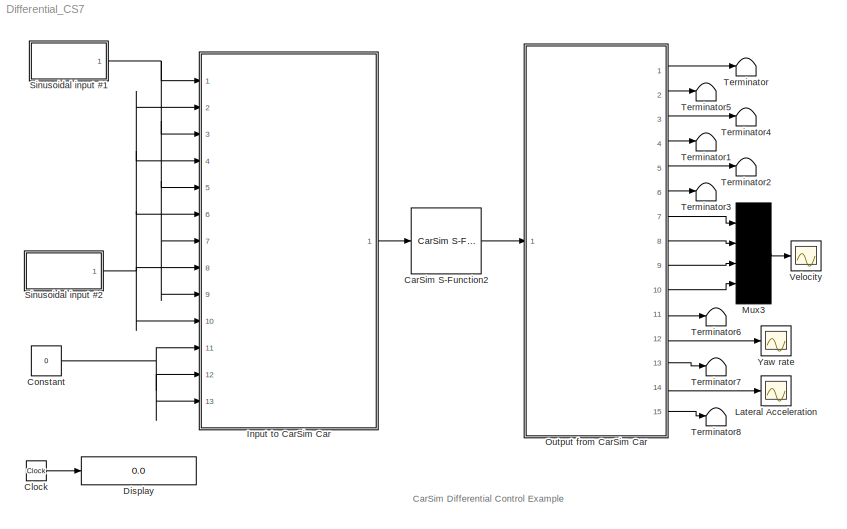
MODEL Differential_CS7
KIND model
BLOCK [Reference] CarSim S-Function2  REF=Solver_SF/CarSim S-Function2
  AttributesFormatString = Vehicle Code: %<VehicleCode>
  Ports = [1, 1]
  Priority = 1
  SIMFILE = simfile.sim
  SourceBlock = Solver_SF/CarSim S-Function2
  SourceType = Vehicle math model library
  VehicleCode = i_s
BLOCK [Clock] Clock
  Decimation = 10
BLOCK [Constant] Constant
  OutDataType = sfix(16)
  OutScaling = 2^0
  Value = 0
BLOCK [Display] Display
  Decimation = 100
  Format = bank
  Lockdown = off
  Ports = [1]
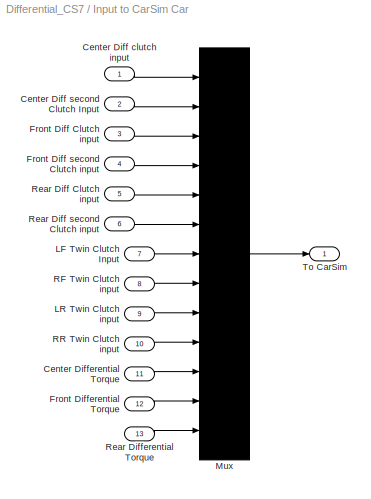
BLOCK [SubSystem] Input to CarSim Car
  FunctionWithSeparateData = off
  MaskHideContents = off
  MinAlgLoopOccurrences = off
  Ports = [13, 1]
  PropExecContextOutsideSubsystem = off
  RTWSystemCode = Auto
BLOCK [Inport] Input to CarSim Car/Center Diff clutch input
  IconDisplay = Port number
  OutDataType = sfix(16)
  OutScaling = 2^0
BLOCK [Inport] Input to CarSim Car/Center Diff second Clutch Input
  IconDisplay = Port number
  OutDataType = sfix(16)
  OutScaling = 2^0
  Port = 2
BLOCK [Inport] Input to CarSim Car/Center Differential Torque
  IconDisplay = Port number
  OutDataType = sfix(16)
  OutScaling = 2^0
  Port = 11
BLOCK [Inport] Input to CarSim Car/Front Diff Clutch input
  IconDisplay = Port number
  OutDataType = sfix(16)
  OutScaling = 2^0
  Port = 3
BLOCK [Inport] Input to CarSim Car/Front Diff second Clutch input
  IconDisplay = Port number
  OutDataType = sfix(16)
  OutScaling = 2^0
  Port = 4
BLOCK [Inport] Input to CarSim Car/Front Differential Torque 
  IconDisplay = Port number
  OutDataType = sfix(16)
  OutScaling = 2^0
  Port = 12
BLOCK [Inport] Input to CarSim Car/LF Twin Clutch Input
  IconDisplay = Port number
  OutDataType = sfix(16)
  OutScaling = 2^0
  Port = 7
BLOCK [Inport] Input to CarSim Car/LR Twin Clutch input
  IconDisplay = Port number
  OutDataType = sfix(16)
  OutScaling = 2^0
  Port = 9
BLOCK [Mux] Input to CarSim Car/Mux
  Inputs = 13
  Ports = [13, 1]
BLOCK [Inport] Input to CarSim Car/RF Twin Clutch input
  IconDisplay = Port number
  OutDataType = sfix(16)
  OutScaling = 2^0
  Port = 8
BLOCK [Inport] Input to CarSim Car/RR Twin Clutch input
  IconDisplay = Port number
  OutDataType = sfix(16)
  OutScaling = 2^0
  Port = 10
BLOCK [Inport] Input to CarSim Car/Rear Diff Clutch input
  IconDisplay = Port number
  OutDataType = sfix(16)
  OutScaling = 2^0
  Port = 5
BLOCK [Inport] Input to CarSim Car/Rear Diff second Clutch input
  IconDisplay = Port number
  OutDataType = sfix(16)
  OutScaling = 2^0
  Port = 6
BLOCK [Inport] Input to CarSim Car/Rear Differential Torque
  IconDisplay = Port number
  OutDataType = sfix(16)
  OutScaling = 2^0
  Port = 13
BLOCK [Outport] Input to CarSim Car/To CarSim
  IconDisplay = Port number
BLOCK [Scope] Lateral Acceleration
  DataFormat = Array
  Floating = off
  LimitDataPoints = off
  NumInputPorts = 1
  Ports = [1]
  SampleTime = 100
  TickLabels = on
  YMax = 1
  YMin = -1
  ZoomMode = yonly
BLOCK [Mux] Mux3
  Ports = [4, 1]
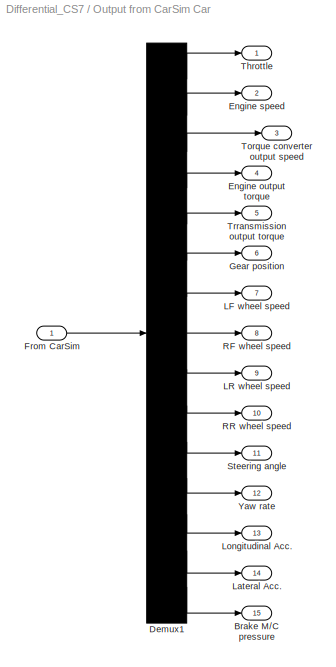
BLOCK [SubSystem] Output from CarSim Car
  FunctionWithSeparateData = off
  MaskHideContents = off
  MinAlgLoopOccurrences = off
  Ports = [1, 15]
  PropExecContextOutsideSubsystem = off
  RTWSystemCode = Auto
BLOCK [Outport] Output from CarSim Car/Brake M//C pressure
  IconDisplay = Port number
  Port = 15
BLOCK [Demux] Output from CarSim Car/Demux1
  Outputs = 15
  Ports = [1, 15]
BLOCK [Outport] Output from CarSim Car/Engine output torque
  IconDisplay = Port number
  Port = 4
BLOCK [Outport] Output from CarSim Car/Engine speed
  IconDisplay = Port number
  Port = 2
BLOCK [Inport] Output from CarSim Car/From CarSim
  IconDisplay = Port number
  OutDataType = sfix(16)
  OutScaling = 2^0
BLOCK [Outport] Output from CarSim Car/Gear position
  IconDisplay = Port number
  Port = 6
BLOCK [Outport] Output from CarSim Car/LF wheel speed
  IconDisplay = Port number
  Port = 7
BLOCK [Outport] Output from CarSim Car/LR wheel speed
  IconDisplay = Port number
  Port = 9
BLOCK [Outport] Output from CarSim Car/Lateral Acc.
  IconDisplay = Port number
  Port = 14
BLOCK [Outport] Output from CarSim Car/Longitudinal Acc.
  IconDisplay = Port number
  Port = 13
BLOCK [Outport] Output from CarSim Car/RF wheel speed
  IconDisplay = Port number
  Port = 8
BLOCK [Outport] Output from CarSim Car/RR wheel speed
  IconDisplay = Port number
  Port = 10
BLOCK [Outport] Output from CarSim Car/Steering angle
  IconDisplay = Port number
  Port = 11
BLOCK [Outport] Output from CarSim Car/Throttle
  IconDisplay = Port number
BLOCK [Outport] Output from CarSim Car/Torque converter output speed
  IconDisplay = Port number
  Port = 3
BLOCK [Outport] Output from CarSim Car/Trransmission output torque
  IconDisplay = Port number
  Port = 5
BLOCK [Outport] Output from CarSim Car/Yaw rate
  IconDisplay = Port number
  Port = 12
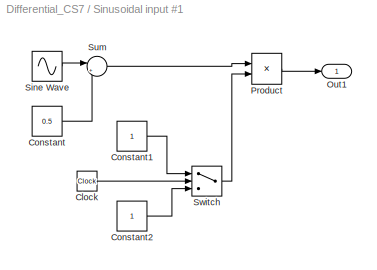
BLOCK [SubSystem] Sinusoidal input #1
  FunctionWithSeparateData = off
  MaskHideContents = off
  MinAlgLoopOccurrences = off
  Ports = [0, 1]
  PropExecContextOutsideSubsystem = off
  RTWSystemCode = Auto
BLOCK [Clock] Sinusoidal input #1/Clock
  Decimation = 10
BLOCK [Constant] Sinusoidal input #1/Constant
  OutDataType = sfix(16)
  OutScaling = 2^0
  Value = 0.5
BLOCK [Constant] Sinusoidal input #1/Constant1
  OutDataType = sfix(16)
  OutScaling = 2^0
BLOCK [Constant] Sinusoidal input #1/Constant2
  OutDataType = sfix(16)
  OutScaling = 2^0
BLOCK [Outport] Sinusoidal input #1/Out1
  IconDisplay = Port number
BLOCK [Product] Sinusoidal input #1/Product
  OutDataType = sfix(16)
  OutScaling = 2^0
  Ports = [2, 1]
  RndMeth = Floor
BLOCK [Sin] Sinusoidal input #1/Sine Wave
  Amplitude = 0.5
  Bias = 0
  Frequency = 0.25*2*pi
  Offset = 0
  Phase = 3/2*pi
  Ports = [0, 1]
  SampleTime = 0
  Samples = 10
BLOCK [Sum] Sinusoidal input #1/Sum
  IconShape = round
  Inputs = |++
  OutDataType = sfix(16)
  OutScaling = 2^0
  Ports = [2, 1]
BLOCK [Switch] Sinusoidal input #1/Switch
  Threshold = 2
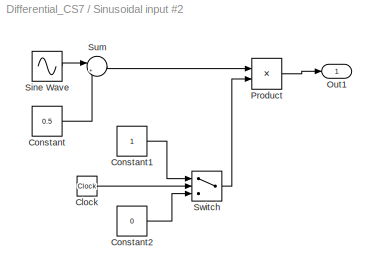
BLOCK [SubSystem] Sinusoidal input #2
  FunctionWithSeparateData = off
  MaskHideContents = off
  MinAlgLoopOccurrences = off
  Ports = [0, 1]
  PropExecContextOutsideSubsystem = off
  RTWSystemCode = Auto
BLOCK [Clock] Sinusoidal input #2/Clock
  Decimation = 10
BLOCK [Constant] Sinusoidal input #2/Constant
  OutDataType = sfix(16)
  OutScaling = 2^0
  Value = 0.5
BLOCK [Constant] Sinusoidal input #2/Constant1
  OutDataType = sfix(16)
  OutScaling = 2^0
BLOCK [Constant] Sinusoidal input #2/Constant2
  OutDataType = sfix(16)
  OutScaling = 2^0
  Value = 0
BLOCK [Outport] Sinusoidal input #2/Out1
  IconDisplay = Port number
BLOCK [Product] Sinusoidal input #2/Product
  OutDataType = sfix(16)
  OutScaling = 2^0
  Ports = [2, 1]
  RndMeth = Floor
BLOCK [Sin] Sinusoidal input #2/Sine Wave
  Amplitude = 0.5
  Bias = 0
  Frequency = 0.25*2*pi
  Offset = 0
  Phase = 1/2*pi
  Ports = [0, 1]
  SampleTime = 0
  Samples = 10
BLOCK [Sum] Sinusoidal input #2/Sum
  IconShape = round
  Inputs = |++
  OutDataType = sfix(16)
  OutScaling = 2^0
  Ports = [2, 1]
BLOCK [Switch] Sinusoidal input #2/Switch
  Threshold = 2
BLOCK [Terminator] Terminator
BLOCK [Terminator] Terminator1
BLOCK [Terminator] Terminator2
BLOCK [Terminator] Terminator3
BLOCK [Terminator] Terminator4
BLOCK [Terminator] Terminator5
BLOCK [Terminator] Terminator6
BLOCK [Terminator] Terminator7
BLOCK [Terminator] Terminator8
BLOCK [Scope] Velocity
  DataFormat = Array
  Floating = off
  LimitDataPoints = off
  NumInputPorts = 1
  Ports = [1]
  SampleTime = 100
  TickLabels = on
  YMax = 200
  YMin = 0
  ZoomMode = yonly
BLOCK [Scope] Yaw rate
  DataFormat = Array
  Floating = off
  LimitDataPoints = off
  NumInputPorts = 1
  Ports = [1]
  SampleTime = 100
  TickLabels = on
  YMax = 20
  YMin = -20
  ZoomMode = yonly
ANNOTATION (root): CarSim Differential Control Example
LINE CarSim S-Function2:1 -> Output from CarSim Car:1
LINE Clock:1 -> Display:1
NET Constant:1 -> Input to CarSim Car:11, Input to CarSim Car:12, Input to CarSim Car:13
LINE Input to CarSim Car/Center Diff clutch input:1 -> Input to CarSim Car/Mux:1
LINE Input to CarSim Car/Center Diff second Clutch Input:1 -> Input to CarSim Car/Mux:2
LINE Input to CarSim Car/Center Differential Torque:1 -> Input to CarSim Car/Mux:11
LINE Input to CarSim Car/Front Diff Clutch input:1 -> Input to CarSim Car/Mux:3
LINE Input to CarSim Car/Front Diff second Clutch input:1 -> Input to CarSim Car/Mux:4
LINE Input to CarSim Car/Front Differential Torque :1 -> Input to CarSim Car/Mux:12
LINE Input to CarSim Car/LF Twin Clutch Input:1 -> Input to CarSim Car/Mux:7
LINE Input to CarSim Car/LR Twin Clutch input:1 -> Input to CarSim Car/Mux:9
LINE Input to CarSim Car/Mux:1 -> Input to CarSim Car/To CarSim:1
LINE Input to CarSim Car/RF Twin Clutch input:1 -> Input to CarSim Car/Mux:8
LINE Input to CarSim Car/RR Twin Clutch input:1 -> Input to CarSim Car/Mux:10
LINE Input to CarSim Car/Rear Diff Clutch input:1 -> Input to CarSim Car/Mux:5
LINE Input to CarSim Car/Rear Diff second Clutch input:1 -> Input to CarSim Car/Mux:6
LINE Input to CarSim Car/Rear Differential Torque:1 -> Input to CarSim Car/Mux:13
LINE Input to CarSim Car:1 -> CarSim S-Function2:1
LINE Mux3:1 -> Velocity:1
LINE Output from CarSim Car/Demux1:1 -> Output from CarSim Car/Throttle:1
LINE Output from CarSim Car/Demux1:10 -> Output from CarSim Car/RR wheel speed:1
LINE Output from CarSim Car/Demux1:11 -> Output from CarSim Car/Steering angle:1
LINE Output from CarSim Car/Demux1:12 -> Output from CarSim Car/Yaw rate:1
LINE Output from CarSim Car/Demux1:13 -> Output from CarSim Car/Longitudinal Acc.:1
LINE Output from CarSim Car/Demux1:14 -> Output from CarSim Car/Lateral Acc.:1
LINE Output from CarSim Car/Demux1:15 -> Output from CarSim Car/Brake M//C pressure:1
LINE Output from CarSim Car/Demux1:2 -> Output from CarSim Car/Engine speed:1
LINE Output from CarSim Car/Demux1:3 -> Output from CarSim Car/Torque converter output speed:1
LINE Output from CarSim Car/Demux1:4 -> Output from CarSim Car/Engine output torque:1
LINE Output from CarSim Car/Demux1:5 -> Output from CarSim Car/Trransmission output torque:1
LINE Output from CarSim Car/Demux1:6 -> Output from CarSim Car/Gear position:1
LINE Output from CarSim Car/Demux1:7 -> Output from CarSim Car/LF wheel speed:1
LINE Output from CarSim Car/Demux1:8 -> Output from CarSim Car/RF wheel speed:1
LINE Output from CarSim Car/Demux1:9 -> Output from CarSim Car/LR wheel speed:1
LINE Output from CarSim Car/From CarSim:1 -> Output from CarSim Car/Demux1:1
LINE Output from CarSim Car:1 -> Terminator:1
LINE Output from CarSim Car:10 -> Mux3:4
LINE Output from CarSim Car:11 -> Terminator6:1
LINE Output from CarSim Car:12 -> Yaw rate:1
LINE Output from CarSim Car:13 -> Terminator7:1
LINE Output from CarSim Car:14 -> Lateral Acceleration:1
LINE Output from CarSim Car:15 -> Terminator8:1
LINE Output from CarSim Car:2 -> Terminator5:1
LINE Output from CarSim Car:3 -> Terminator4:1
LINE Output from CarSim Car:4 -> Terminator1:1
LINE Output from CarSim Car:5 -> Terminator2:1
LINE Output from CarSim Car:6 -> Terminator3:1
LINE Output from CarSim Car:7 -> Mux3:1
LINE Output from CarSim Car:8 -> Mux3:2
LINE Output from CarSim Car:9 -> Mux3:3
LINE Sinusoidal input #1/Clock:1 -> Sinusoidal input #1/Switch:2
LINE Sinusoidal input #1/Constant1:1 -> Sinusoidal input #1/Switch:1
LINE Sinusoidal input #1/Constant2:1 -> Sinusoidal input #1/Switch:3
LINE Sinusoidal input #1/Constant:1 -> Sinusoidal input #1/Sum:2
LINE Sinusoidal input #1/Product:1 -> Sinusoidal input #1/Out1:1
LINE Sinusoidal input #1/Sine Wave:1 -> Sinusoidal input #1/Sum:1
LINE Sinusoidal input #1/Sum:1 -> Sinusoidal input #1/Product:1
LINE Sinusoidal input #1/Switch:1 -> Sinusoidal input #1/Product:2
NET Sinusoidal input #1:1 -> Input to CarSim Car:1, Input to CarSim Car:3, Input to CarSim Car:5, Input to CarSim Car:7, Input to CarSim Car:9
LINE Sinusoidal input #2/Clock:1 -> Sinusoidal input #2/Switch:2
LINE Sinusoidal input #2/Constant1:1 -> Sinusoidal input #2/Switch:1
LINE Sinusoidal input #2/Constant2:1 -> Sinusoidal input #2/Switch:3
LINE Sinusoidal input #2/Constant:1 -> Sinusoidal input #2/Sum:2
LINE Sinusoidal input #2/Product:1 -> Sinusoidal input #2/Out1:1
LINE Sinusoidal input #2/Sine Wave:1 -> Sinusoidal input #2/Sum:1
LINE Sinusoidal input #2/Sum:1 -> Sinusoidal input #2/Product:1
LINE Sinusoidal input #2/Switch:1 -> Sinusoidal input #2/Product:2
NET Sinusoidal input #2:1 -> Input to CarSim Car:10, Input to CarSim Car:2, Input to CarSim Car:4, Input to CarSim Car:6, Input to CarSim Car:8
note: NET lines group one-source signal fan-out (src -> all destinations, sorted); 1:1 wires keep LINE
